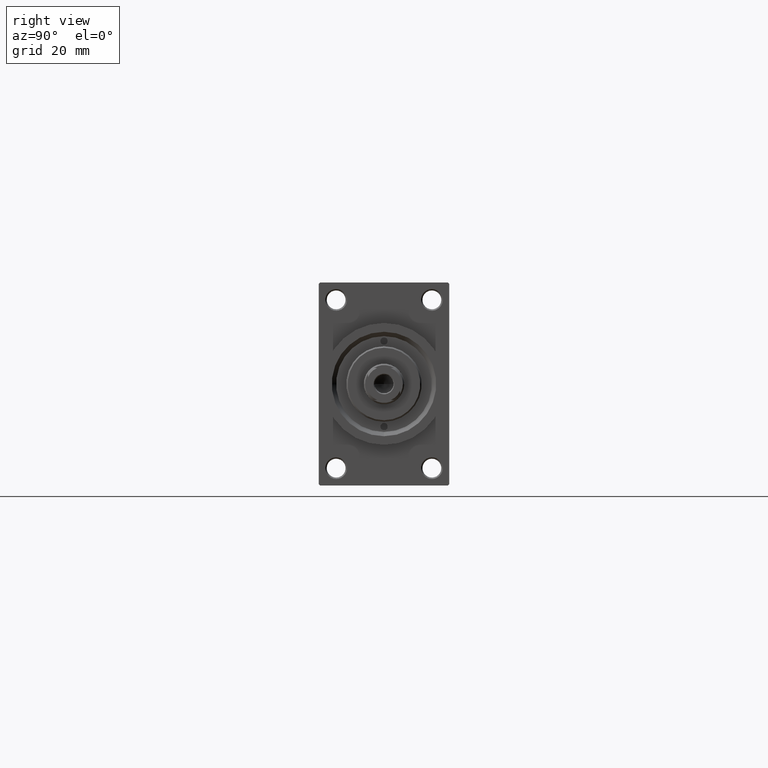
[diagram: clean part render]
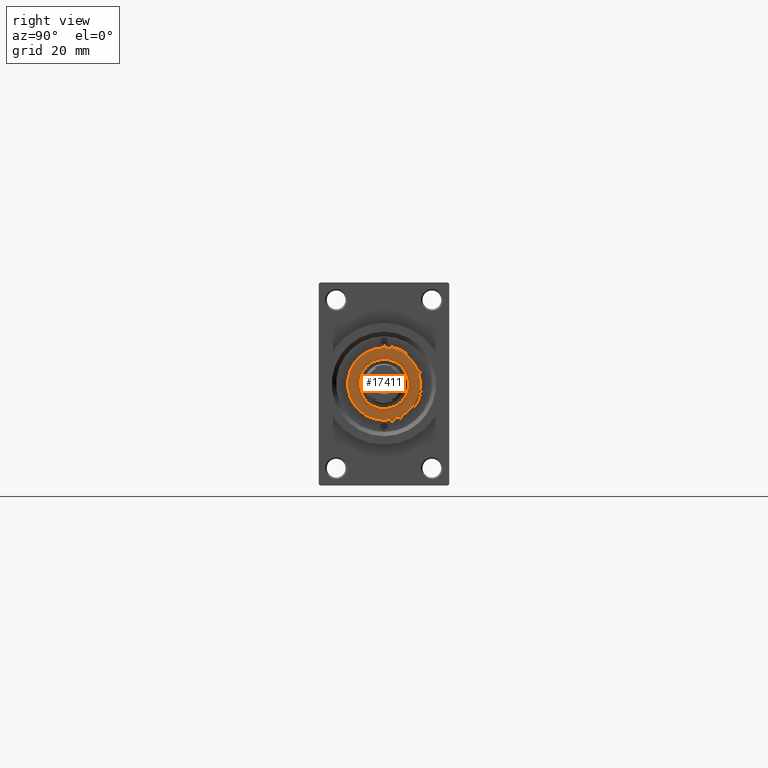
[diagram: same view with one face highlighted and labeled with its STEP entity id]
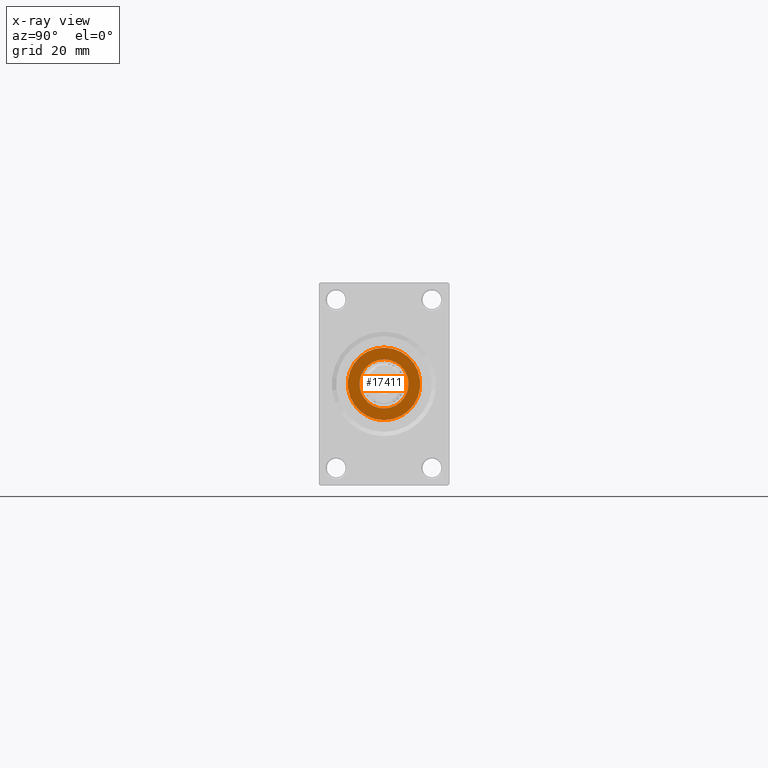
[diagram: x-ray of the same camera — body ghosted, the highlighted face saturated]
A machine part, right view. The second image highlights one B-rep face of the part: STEP entity #17411.
The next image is the same camera in x-ray: the body ghosted, the highlighted face saturated — about 0% of this face is hidden behind the body in this view.
In plain terms, the highlighted planar face has unit normal (1, -0, -0).
Its self-contained STEP definition (entity closure, byte-faithful):
#3464 = VERTEX_POINT ( 'NONE', #12877 ) ;
#4239 = EDGE_CURVE ( 'NONE', #43180, #3464, #32373, .T. ) ;
#4563 = PLANE ( 'NONE',  #27348 ) ;
#9028 = ORIENTED_EDGE ( 'NONE', *, *, #20064, .F. ) ;
#11720 = AXIS2_PLACEMENT_3D ( 'NONE', #36591, #26728, #44691 ) ;
#12131 = CIRCLE ( 'NONE', #16701, 8.500000000000000000 ) ;
#12377 = DIRECTION ( 'NONE',  ( 1.000000000000000000, 0.000000000000000000, 0.000000000000000000 ) ) ;
#12585 = DIRECTION ( 'NONE',  ( 1.000000000000000000, 0.000000000000000000, 0.000000000000000000 ) ) ;
#12877 = CARTESIAN_POINT ( 'NONE',  ( -12.49999999999998401, 0.000000000000000000, 51.25999999999999801 ) ) ;
#12998 = ORIENTED_EDGE ( 'NONE', *, *, #46754, .T. ) ;
#13160 = CARTESIAN_POINT ( 'NONE',  ( -8.500000000000000000, 1.040949779275250140E-15, 51.25999999999999801 ) ) ;
#13696 = AXIS2_PLACEMENT_3D ( 'NONE', #15737, #17080, #12377 ) ;
#15737 = CARTESIAN_POINT ( 'NONE',  ( 0.000000000000000000, 0.000000000000000000, 51.25999999999999801 ) ) ;
#15830 = AXIS2_PLACEMENT_3D ( 'NONE', #16408, #42054, #12585 ) ;
#16408 = CARTESIAN_POINT ( 'NONE',  ( 0.000000000000000000, 0.000000000000000000, 51.25999999999999801 ) ) ;
#16701 = AXIS2_PLACEMENT_3D ( 'NONE', #25783, #40410, #36582 ) ;
#17080 = DIRECTION ( 'NONE',  ( 0.000000000000000000, 0.000000000000000000, 1.000000000000000000 ) ) ;
#17361 = CIRCLE ( 'NONE', #15830, 12.49999999999998401 ) ;
#17411 = ADVANCED_FACE ( 'NONE', ( #20100, #38077 ), #4563, .T. ) ;
#20064 = EDGE_CURVE ( 'NONE', #38029, #33650, #12131, .T. ) ;
#20100 = FACE_BOUND ( 'NONE', #33509, .T. ) ;
#21567 = EDGE_CURVE ( 'NONE', #33650, #38029, #31327, .T. ) ;
#24870 = ORIENTED_EDGE ( 'NONE', *, *, #4239, .T. ) ;
#24958 = EDGE_LOOP ( 'NONE', ( #12998, #24870 ) ) ;
#25783 = CARTESIAN_POINT ( 'NONE',  ( 0.000000000000000000, 0.000000000000000000, 51.25999999999999801 ) ) ;
#26728 = DIRECTION ( 'NONE',  ( 0.000000000000000000, 0.000000000000000000, 1.000000000000000000 ) ) ;
#27348 = AXIS2_PLACEMENT_3D ( 'NONE', #44774, #33793, #30654 ) ;
#30654 = DIRECTION ( 'NONE',  ( 1.000000000000000000, 0.000000000000000000, -0.000000000000000000 ) ) ;
#31327 = CIRCLE ( 'NONE', #13696, 8.500000000000000000 ) ;
#32373 = CIRCLE ( 'NONE', #11720, 12.49999999999998401 ) ;
#33509 = EDGE_LOOP ( 'NONE', ( #38547, #9028 ) ) ;
#33650 = VERTEX_POINT ( 'NONE', #40738 ) ;
#33793 = DIRECTION ( 'NONE',  ( 0.000000000000000000, 0.000000000000000000, 1.000000000000000000 ) ) ;
#36582 = DIRECTION ( 'NONE',  ( 1.000000000000000000, 0.000000000000000000, 0.000000000000000000 ) ) ;
#36591 = CARTESIAN_POINT ( 'NONE',  ( 0.000000000000000000, 0.000000000000000000, 51.25999999999999801 ) ) ;
#38029 = VERTEX_POINT ( 'NONE', #13160 ) ;
#38077 = FACE_OUTER_BOUND ( 'NONE', #24958, .T. ) ;
#38547 = ORIENTED_EDGE ( 'NONE', *, *, #21567, .F. ) ;
#40410 = DIRECTION ( 'NONE',  ( 0.000000000000000000, 0.000000000000000000, 1.000000000000000000 ) ) ;
#40738 = CARTESIAN_POINT ( 'NONE',  ( 8.500000000000000000, 0.000000000000000000, 51.25999999999999801 ) ) ;
#41879 = CARTESIAN_POINT ( 'NONE',  ( 12.49999999999998401, 1.561424668912874322E-15, 51.25999999999999801 ) ) ;
#42054 = DIRECTION ( 'NONE',  ( 0.000000000000000000, 0.000000000000000000, 1.000000000000000000 ) ) ;
#43180 = VERTEX_POINT ( 'NONE', #41879 ) ;
#44691 = DIRECTION ( 'NONE',  ( 1.000000000000000000, 0.000000000000000000, 0.000000000000000000 ) ) ;
#44774 = CARTESIAN_POINT ( 'NONE',  ( 0.000000000000000000, 0.000000000000000000, 51.25999999999999801 ) ) ;
#46754 = EDGE_CURVE ( 'NONE', #3464, #43180, #17361, .T. ) ;